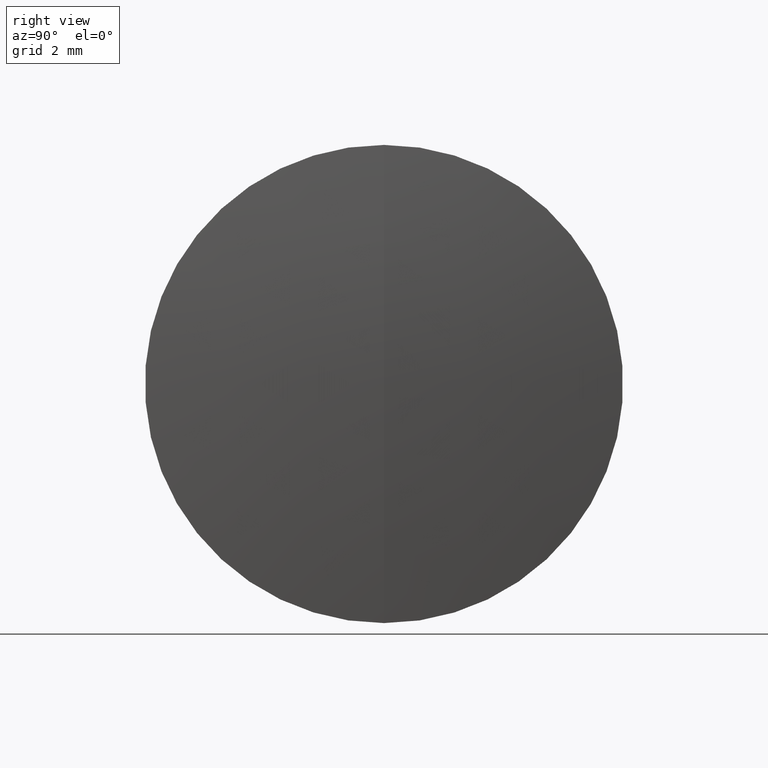
[diagram: clean part render]
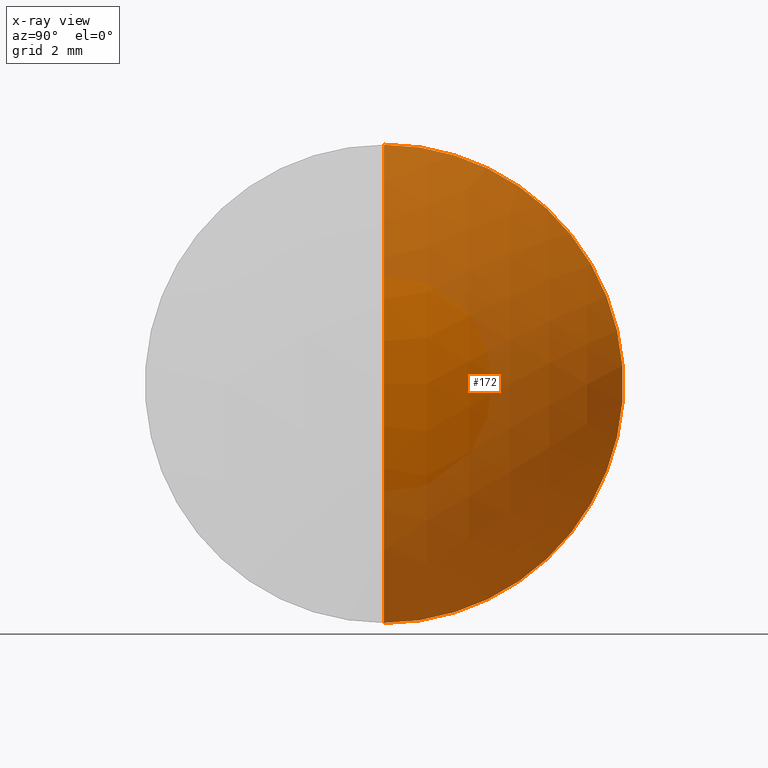
[diagram: x-ray — body ghosted, one internal face saturated and labeled with its STEP entity id]
A machine part, right view, then the same camera in x-ray: the body is ghosted and one INTERNAL B-rep face — a face not visible from any outside direction — is saturated and labeled: STEP entity #172.
In plain terms, the highlighted spherical surface has radius 13.092 mm.
Its self-contained STEP definition (entity closure, byte-faithful):
#4 = CIRCLE ( 'NONE', #20, 8.000000000000000000 ) ;
#20 = AXIS2_PLACEMENT_3D ( 'NONE', #328, #137, #136 ) ;
#37 = AXIS2_PLACEMENT_3D ( 'NONE', #60, #81, #327 ) ;
#60 = CARTESIAN_POINT ( 'NONE',  ( 6.125043479573127700, 0.0000000000000000000, -2.710505431213761100E-017 ) ) ;
#77 = EDGE_LOOP ( 'NONE', ( #113, #80, #162 ) ) ;
#80 = ORIENTED_EDGE ( 'NONE', *, *, #254, .T. ) ;
#81 = DIRECTION ( 'NONE',  ( 0.0000000000000000000, 1.000000000000000000, 0.0000000000000000000 ) ) ;
#91 = DIRECTION ( 'NONE',  ( 0.0000000000000000000, -1.224646799147353200E-016, 1.000000000000000000 ) ) ;
#93 = DIRECTION ( 'NONE',  ( 0.0000000000000000000, -1.000000000000000000, 0.0000000000000000000 ) ) ;
#95 = DIRECTION ( 'NONE',  ( -0.0000000000000000000, 1.000000000000000000, 1.224646799147353200E-016 ) ) ;
#101 = EDGE_CURVE ( 'NONE', #204, #165, #110, .T. ) ;
#102 = AXIS2_PLACEMENT_3D ( 'NONE', #106, #95, #91 ) ;
#106 = CARTESIAN_POINT ( 'NONE',  ( 6.125043479573127700, 0.0000000000000000000, -2.710505431213761100E-017 ) ) ;
#110 = CIRCLE ( 'NONE', #236, 13.09200000000000200 ) ;
#113 = ORIENTED_EDGE ( 'NONE', *, *, #101, .F. ) ;
#130 = VERTEX_POINT ( 'NONE', #315 ) ;
#136 = DIRECTION ( 'NONE',  ( 0.0000000000000000000, 0.0000000000000000000, 1.000000000000000000 ) ) ;
#137 = DIRECTION ( 'NONE',  ( -1.000000000000000000, -0.0000000000000000000, -0.0000000000000000000 ) ) ;
#147 = CARTESIAN_POINT ( 'NONE',  ( 6.125043479573127700, 0.0000000000000000000, -2.710505431213761100E-017 ) ) ;
#162 = ORIENTED_EDGE ( 'NONE', *, *, #212, .F. ) ;
#165 = VERTEX_POINT ( 'NONE', #217 ) ;
#172 = ADVANCED_FACE ( 'NONE', ( #303 ), #238, .T. ) ;
#203 = CARTESIAN_POINT ( 'NONE',  ( 19.21704347957313200, 0.0000000000000000000, 7.745487404097199200E-016 ) ) ;
#204 = VERTEX_POINT ( 'NONE', #203 ) ;
#212 = EDGE_CURVE ( 'NONE', #165, #130, #4, .T. ) ;
#217 = CARTESIAN_POINT ( 'NONE',  ( 16.48846299245593300, 0.0000000000000000000, 8.000000000000000000 ) ) ;
#235 = CIRCLE ( 'NONE', #102, 13.09200000000000200 ) ;
#236 = AXIS2_PLACEMENT_3D ( 'NONE', #147, #93, #311 ) ;
#238 = SPHERICAL_SURFACE ( 'NONE', #37, 13.09200000000000200 ) ;
#254 = EDGE_CURVE ( 'NONE', #204, #130, #235, .T. ) ;
#303 = FACE_OUTER_BOUND ( 'NONE', #77, .T. ) ;
#311 = DIRECTION ( 'NONE',  ( 0.0000000000000000000, 0.0000000000000000000, -1.000000000000000000 ) ) ;
#315 = CARTESIAN_POINT ( 'NONE',  ( 16.48846299245593300, 9.797174393178825700E-016, -8.000000000000000000 ) ) ;
#327 = DIRECTION ( 'NONE',  ( 0.0000000000000000000, 0.0000000000000000000, 1.000000000000000000 ) ) ;
#328 = CARTESIAN_POINT ( 'NONE',  ( 16.48846299245593300, 0.0000000000000000000, 0.0000000000000000000 ) ) ;